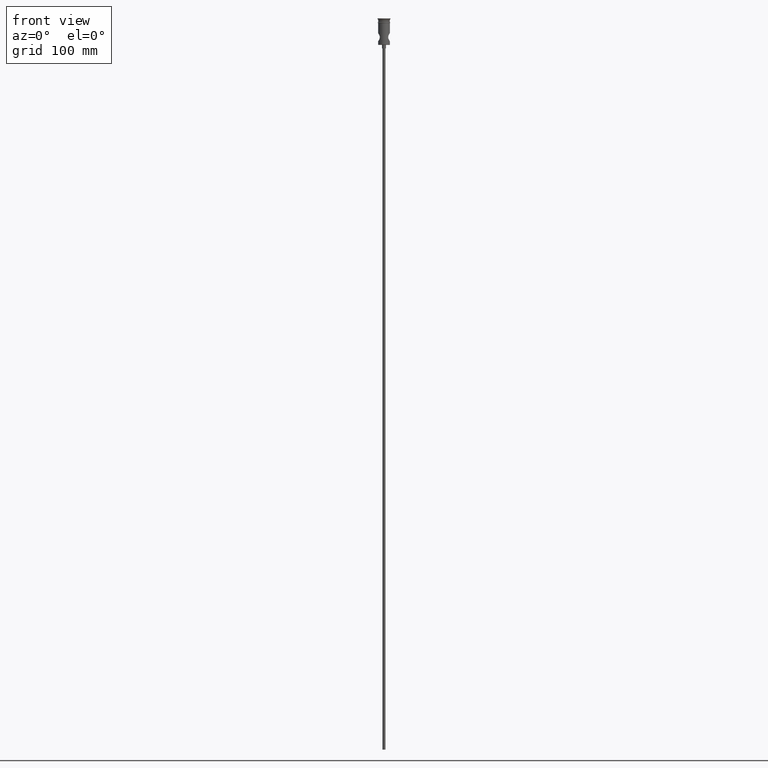
[diagram: clean part render]
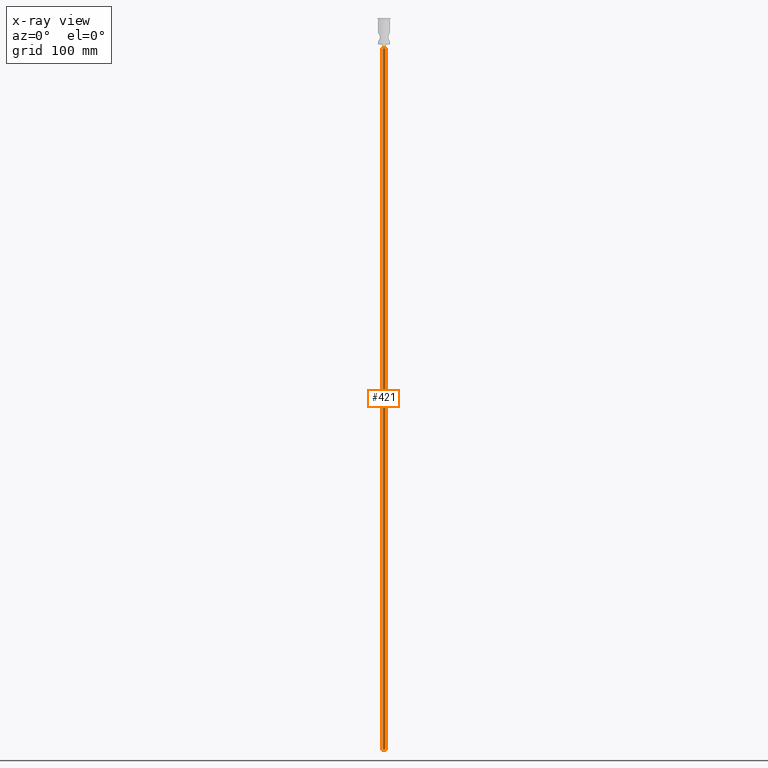
[diagram: x-ray — body ghosted, one internal face saturated and labeled with its STEP entity id]
A machine part, front view, then the same camera in x-ray: the body is ghosted and one INTERNAL B-rep face — a face not visible from any outside direction — is saturated and labeled: STEP entity #421.
In plain terms, the highlighted cylindrical surface (edge-blend (fillet) strip) has radius 1.25 mm, axis along (-0, -0, 1).
Its self-contained STEP definition (entity closure, byte-faithful):
#28 = CYLINDRICAL_SURFACE ( 'NONE', #746, 1.250000000000000000 ) ;
#116 = CARTESIAN_POINT ( 'NONE',  ( -1.250000000000000000, 1.530808498934191571E-16, -622.4999999999998863 ) ) ;
#137 = VERTEX_POINT ( 'NONE', #591 ) ;
#219 = LINE ( 'NONE', #116, #578 ) ;
#250 = ORIENTED_EDGE ( 'NONE', *, *, #1112, .F. ) ;
#277 = CARTESIAN_POINT ( 'NONE',  ( 0.000000000000000000, 0.000000000000000000, -622.4999999999998863 ) ) ;
#295 = EDGE_CURVE ( 'NONE', #513, #663, #636, .T. ) ;
#324 = ORIENTED_EDGE ( 'NONE', *, *, #295, .F. ) ;
#339 = DIRECTION ( 'NONE',  ( -0.000000000000000000, -0.000000000000000000, 1.000000000000000000 ) ) ;
#356 = CARTESIAN_POINT ( 'NONE',  ( -1.250000000000000000, 1.530808498934191571E-16, -25.50000000000000000 ) ) ;
#407 = EDGE_CURVE ( 'NONE', #137, #1327, #219, .T. ) ;
#412 = DIRECTION ( 'NONE',  ( 0.000000000000000000, 0.000000000000000000, -1.000000000000000000 ) ) ;
#421 = ADVANCED_FACE ( 'NONE', ( #968 ), #28, .T. ) ;
#424 = DIRECTION ( 'NONE',  ( -1.000000000000000000, 0.000000000000000000, 0.000000000000000000 ) ) ;
#436 = VECTOR ( 'NONE', #1273, 1000.000000000000000 ) ;
#464 = CIRCLE ( 'NONE', #992, 1.250000000000000000 ) ;
#513 = VERTEX_POINT ( 'NONE', #1172 ) ;
#528 = CARTESIAN_POINT ( 'NONE',  ( 1.250000000000000000, 0.000000000000000000, -622.4999999999998863 ) ) ;
#578 = VECTOR ( 'NONE', #339, 1000.000000000000000 ) ;
#591 = CARTESIAN_POINT ( 'NONE',  ( -1.250000000000000000, 1.530808498934191571E-16, -622.4999999999998863 ) ) ;
#602 = CARTESIAN_POINT ( 'NONE',  ( 1.250000000000000000, 0.000000000000000000, -25.50000000000000000 ) ) ;
#636 = LINE ( 'NONE', #528, #436 ) ;
#663 = VERTEX_POINT ( 'NONE', #602 ) ;
#716 = ORIENTED_EDGE ( 'NONE', *, *, #987, .T. ) ;
#746 = AXIS2_PLACEMENT_3D ( 'NONE', #277, #1138, #1256 ) ;
#768 = AXIS2_PLACEMENT_3D ( 'NONE', #1404, #412, #424 ) ;
#816 = CIRCLE ( 'NONE', #768, 1.250000000000000000 ) ;
#818 = DIRECTION ( 'NONE',  ( -1.000000000000000000, 0.000000000000000000, 0.000000000000000000 ) ) ;
#825 = CARTESIAN_POINT ( 'NONE',  ( 0.000000000000000000, 0.000000000000000000, -622.4999999999998863 ) ) ;
#846 = EDGE_LOOP ( 'NONE', ( #250, #1362, #716, #324 ) ) ;
#968 = FACE_OUTER_BOUND ( 'NONE', #846, .T. ) ;
#987 = EDGE_CURVE ( 'NONE', #1327, #663, #816, .T. ) ;
#992 = AXIS2_PLACEMENT_3D ( 'NONE', #825, #1156, #818 ) ;
#1112 = EDGE_CURVE ( 'NONE', #137, #513, #464, .T. ) ;
#1138 = DIRECTION ( 'NONE',  ( -0.000000000000000000, -0.000000000000000000, 1.000000000000000000 ) ) ;
#1156 = DIRECTION ( 'NONE',  ( 0.000000000000000000, 0.000000000000000000, -1.000000000000000000 ) ) ;
#1172 = CARTESIAN_POINT ( 'NONE',  ( 1.250000000000000000, 0.000000000000000000, -622.4999999999998863 ) ) ;
#1256 = DIRECTION ( 'NONE',  ( 1.000000000000000000, 0.000000000000000000, 0.000000000000000000 ) ) ;
#1273 = DIRECTION ( 'NONE',  ( -0.000000000000000000, -0.000000000000000000, 1.000000000000000000 ) ) ;
#1327 = VERTEX_POINT ( 'NONE', #356 ) ;
#1362 = ORIENTED_EDGE ( 'NONE', *, *, #407, .T. ) ;
#1404 = CARTESIAN_POINT ( 'NONE',  ( 0.000000000000000000, 0.000000000000000000, -25.50000000000000000 ) ) ;